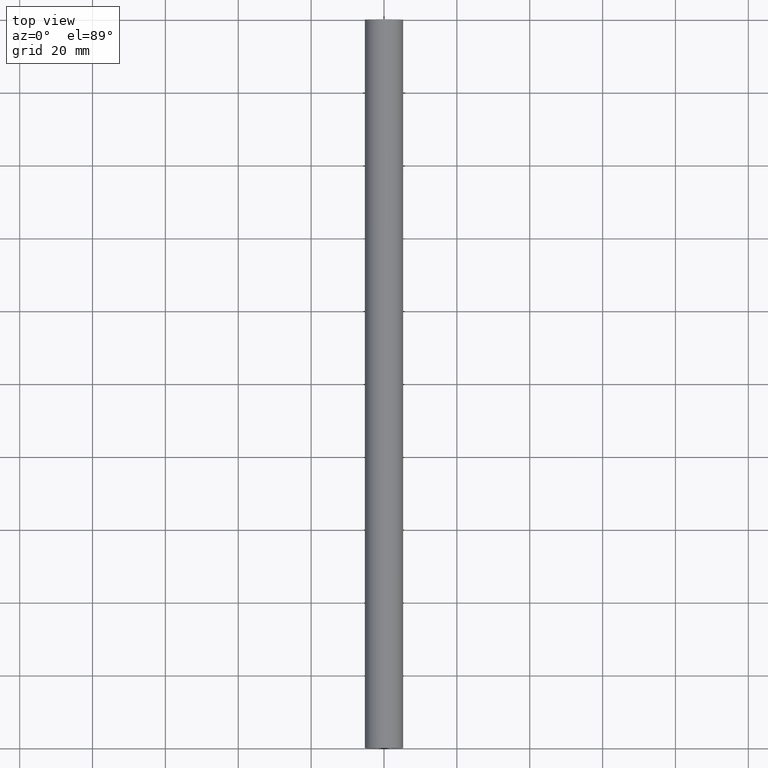
[diagram: clean part render]
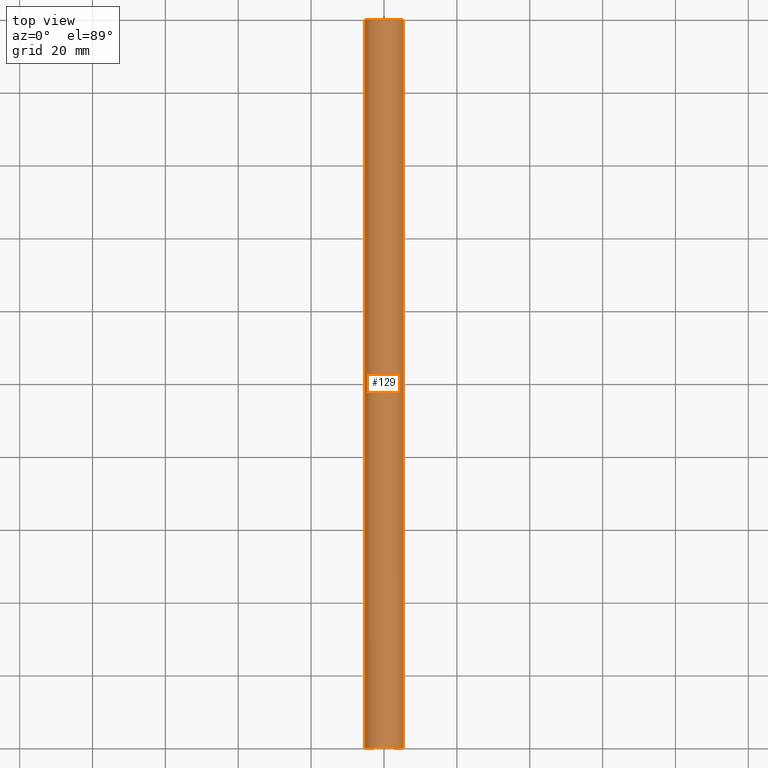
[diagram: same view with one face highlighted and labeled with its STEP entity id]
A machine part, top view. The second image highlights one B-rep face of the part: STEP entity #129.
In plain terms, the highlighted cylindrical surface (edge-blend (fillet) strip) has radius 5.25 mm, axis along (-0, -1, 0).
Its self-contained STEP definition (entity closure, byte-faithful):
#129=ADVANCED_FACE('',(#319),#318,.T.);
#318=CYLINDRICAL_SURFACE('',#578,5.25000000000E+00);
#319=FACE_OUTER_BOUND('',#579,.T.);
#575=CARTESIAN_POINT('',(-6.19826022098E-15,-5.12500000000E+00,-5.25000000000E+00));
#576=DIRECTION('',(-5.50827436733E-17,-1.00000000000E+00,2.10352511474E-15));
#577=DIRECTION('',(-8.72653549842E-03,-2.10296433743E-15,-9.99961923064E-01));
#578=AXIS2_PLACEMENT_3D('',#575,#576,#577);
#579=EDGE_LOOP('',(#764,#765,#766,#767));
#764=ORIENTED_EDGE('',*,*,#846,.F.);
#765=ORIENTED_EDGE('',*,*,#900,.F.);
#766=ORIENTED_EDGE('',*,*,#886,.T.);
#767=ORIENTED_EDGE('',*,*,#899,.T.);
#846=EDGE_CURVE('',#966,#973,#974,.T.);
#886=EDGE_CURVE('',#1245,#1238,#1246,.T.);
#899=EDGE_CURVE('',#1238,#973,#1328,.T.);
#900=EDGE_CURVE('',#1245,#966,#1334,.T.);
#966=VERTEX_POINT('',#1552);
#973=VERTEX_POINT('',#1556);
#974=CIRCLE('',#1560,5.25000000000E+00);
#1238=VERTEX_POINT('',#1713);
#1245=VERTEX_POINT('',#1717);
#1246=CIRCLE('',#1721,5.25000000000E+00);
#1328=LINE('',#1763,#1764);
#1334=LINE('',#1766,#1767);
#1552=CARTESIAN_POINT('',(5.25000000000E+00,0.00000000000E+00,-5.25000000000E+00));
#1556=CARTESIAN_POINT('',(-5.25000000000E+00,0.00000000000E+00,-5.25000000000E+00));
#1557=CARTESIAN_POINT('',(2.44249065418E-14,0.00000000000E+00,-5.25000000000E+00));
#1558=DIRECTION('',(0.00000000000E+00,-1.00000000000E+00,0.00000000000E+00));
#1559=DIRECTION('',(-1.00000000000E+00,-0.00000000000E+00,1.01506105109E-15));
#1560=AXIS2_PLACEMENT_3D('',#1557,#1558,#1559);
#1713=CARTESIAN_POINT('',(-5.25000000000E+00,2.00000000000E+02,-5.25000000000E+00));
#1717=CARTESIAN_POINT('',(5.25000000000E+00,2.00000000000E+02,-5.25000000000E+00));
#1718=CARTESIAN_POINT('',(0.00000000000E+00,2.00000000000E+02,-5.25000000000E+00));
#1719=DIRECTION('',(0.00000000000E+00,-1.00000000000E+00,2.16546357565E-14));
#1720=DIRECTION('',(-1.00000000000E+00,-0.00000000000E+00,-0.00000000000E+00));
#1721=AXIS2_PLACEMENT_3D('',#1718,#1719,#1720);
#1763=CARTESIAN_POINT('',(-5.25000000000E+00,2.00000000000E+02,-5.25000000000E+00));
#1764=VECTOR('',#1765,2.00000000000E+02);
#1765=DIRECTION('',(0.00000000000E+00,-1.00000000000E+00,0.00000000000E+00));
#1766=CARTESIAN_POINT('',(5.25000000000E+00,2.00000000000E+02,-5.25000000000E+00));
#1767=VECTOR('',#1768,2.00000000000E+02);
#1768=DIRECTION('',(0.00000000000E+00,-1.00000000000E+00,0.00000000000E+00));